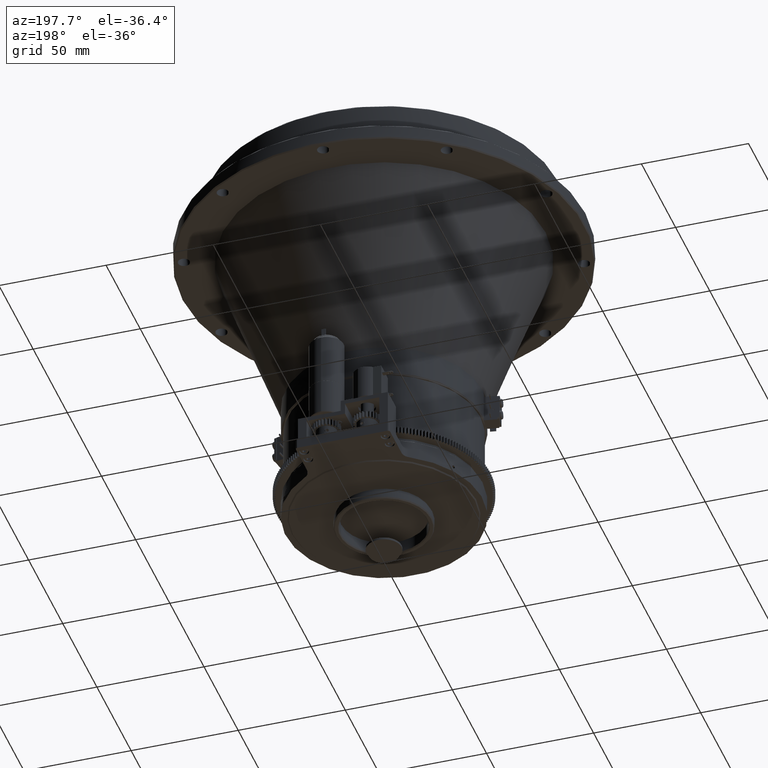
[diagram: clean part render]
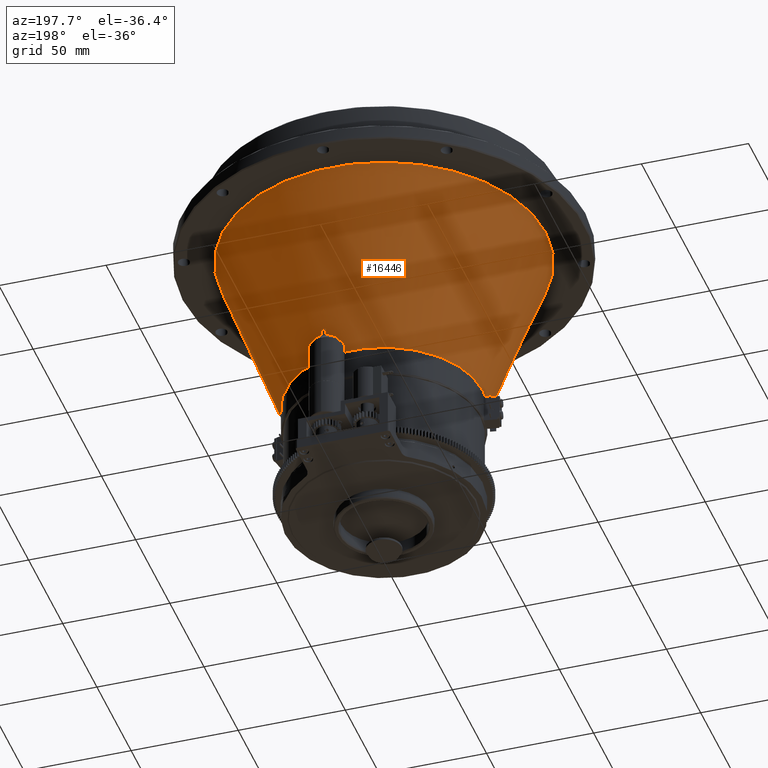
[diagram: same view with one face highlighted and labeled with its STEP entity id]
A machine part, auxiliary view. The second image highlights one B-rep face of the part: STEP entity #16446.
In plain terms, the highlighted conical surface has half-angle 20.126 deg.
Its self-contained STEP definition (entity closure, byte-faithful):
#935 = CARTESIAN_POINT ( 'NONE',  ( 0.000000000000000000, 0.000000000000000000, -105.4593485126813732 ) ) ;
#9788 = CARTESIAN_POINT ( 'NONE',  ( 0.000000000000000000, 0.000000000000000000, -105.4593485126813732 ) ) ;
#16446 = ADVANCED_FACE ( 'NONE', ( #75443, #103577 ), #34460, .T. ) ;
#18672 = EDGE_CURVE ( 'NONE', #87504, #90201, #89062, .T. ) ;
#19885 = CARTESIAN_POINT ( 'NONE',  ( 0.000000000000000000, 0.000000000000000000, -105.4593485126813732 ) ) ;
#24221 = CARTESIAN_POINT ( 'NONE',  ( -43.63421825872129745, -14.56210825911798068, -105.4593485126813732 ) ) ;
#24895 = CIRCLE ( 'NONE', #80455, 45.99999999999999289 ) ;
#29809 = EDGE_LOOP ( 'NONE', ( #84540 ) ) ;
#31186 = EDGE_CURVE ( 'NONE', #90201, #85026, #61870, .T. ) ;
#34460 = CONICAL_SURFACE ( 'NONE', #89948, 75.50000000000001421, 0.3512622789480863150 ) ;
#34853 = AXIS2_PLACEMENT_3D ( 'NONE', #9788, #90743, #100336 ) ;
#35782 = CARTESIAN_POINT ( 'NONE',  ( 75.50000000000001421, 0.000000000000000000, -24.95934851268139099 ) ) ;
#37487 = DIRECTION ( 'NONE',  ( 0.000000000000000000, 0.000000000000000000, 1.000000000000000000 ) ) ;
#41180 = ORIENTED_EDGE ( 'NONE', *, *, #18672, .T. ) ;
#41368 = CARTESIAN_POINT ( 'NONE',  ( 45.98328726538958477, -1.239875908573065066, -105.4593485126813732 ) ) ;
#42208 = DIRECTION ( 'NONE',  ( 1.000000000000000000, 0.000000000000000000, 0.000000000000000000 ) ) ;
#43114 = AXIS2_PLACEMENT_3D ( 'NONE', #19885, #49197, #103179 ) ;
#45888 = EDGE_CURVE ( 'NONE', #85026, #66394, #24895, .T. ) ;
#49197 = DIRECTION ( 'NONE',  ( 0.000000000000000000, -0.000000000000000000, 1.000000000000000000 ) ) ;
#49704 = CARTESIAN_POINT ( 'NONE',  ( 0.000000000000000000, 0.000000000000000000, -24.95934851268139099 ) ) ;
#61870 = CIRCLE ( 'NONE', #102126, 45.99999999999999289 ) ;
#63303 = DIRECTION ( 'NONE',  ( -0.000000000000000000, 0.000000000000000000, -1.000000000000000000 ) ) ;
#66394 = VERTEX_POINT ( 'NONE', #41368 ) ;
#70453 = CARTESIAN_POINT ( 'NONE',  ( -45.98328726538958477, -1.239875908573087049, -105.4593485126813732 ) ) ;
#72157 = ORIENTED_EDGE ( 'NONE', *, *, #31186, .T. ) ;
#75443 = FACE_BOUND ( 'NONE', #80259, .T. ) ;
#76008 = CARTESIAN_POINT ( 'NONE',  ( 0.000000000000000000, 0.000000000000000000, -24.95934851268137677 ) ) ;
#78166 = DIRECTION ( 'NONE',  ( 0.000000000000000000, -0.000000000000000000, 1.000000000000000000 ) ) ;
#78312 = EDGE_CURVE ( 'NONE', #100536, #100536, #89403, .T. ) ;
#79937 = CARTESIAN_POINT ( 'NONE',  ( 0.000000000000000000, 0.000000000000000000, -105.4593485126813732 ) ) ;
#80259 = EDGE_LOOP ( 'NONE', ( #105774, #41180, #72157, #116832 ) ) ;
#80455 = AXIS2_PLACEMENT_3D ( 'NONE', #79937, #78166, #42208 ) ;
#83658 = DIRECTION ( 'NONE',  ( 1.000000000000000000, 0.000000000000000000, 0.000000000000000000 ) ) ;
#84540 = ORIENTED_EDGE ( 'NONE', *, *, #78312, .T. ) ;
#85026 = VERTEX_POINT ( 'NONE', #86024 ) ;
#86024 = CARTESIAN_POINT ( 'NONE',  ( 43.63421825872132587, -14.56210825911792028, -105.4593485126813732 ) ) ;
#86535 = CIRCLE ( 'NONE', #34853, 45.99999999999999289 ) ;
#87504 = VERTEX_POINT ( 'NONE', #70453 ) ;
#89062 = CIRCLE ( 'NONE', #43114, 45.99999999999999289 ) ;
#89133 = EDGE_CURVE ( 'NONE', #66394, #87504, #86535, .T. ) ;
#89403 = CIRCLE ( 'NONE', #108549, 75.50000000000001421 ) ;
#89948 = AXIS2_PLACEMENT_3D ( 'NONE', #76008, #112561, #101829 ) ;
#90201 = VERTEX_POINT ( 'NONE', #24221 ) ;
#90743 = DIRECTION ( 'NONE',  ( 0.000000000000000000, 0.000000000000000000, 1.000000000000000000 ) ) ;
#100336 = DIRECTION ( 'NONE',  ( 1.000000000000000000, 0.000000000000000000, 0.000000000000000000 ) ) ;
#100536 = VERTEX_POINT ( 'NONE', #35782 ) ;
#101829 = DIRECTION ( 'NONE',  ( 1.000000000000000000, 0.000000000000000000, 0.000000000000000000 ) ) ;
#102126 = AXIS2_PLACEMENT_3D ( 'NONE', #935, #37487, #83658 ) ;
#103179 = DIRECTION ( 'NONE',  ( 1.000000000000000000, 0.000000000000000000, 0.000000000000000000 ) ) ;
#103577 = FACE_OUTER_BOUND ( 'NONE', #29809, .T. ) ;
#105774 = ORIENTED_EDGE ( 'NONE', *, *, #89133, .T. ) ;
#108549 = AXIS2_PLACEMENT_3D ( 'NONE', #49704, #63303, #117801 ) ;
#112561 = DIRECTION ( 'NONE',  ( 0.000000000000000000, -0.000000000000000000, 1.000000000000000000 ) ) ;
#116832 = ORIENTED_EDGE ( 'NONE', *, *, #45888, .T. ) ;
#117801 = DIRECTION ( 'NONE',  ( 1.000000000000000000, 0.000000000000000000, 0.000000000000000000 ) ) ;